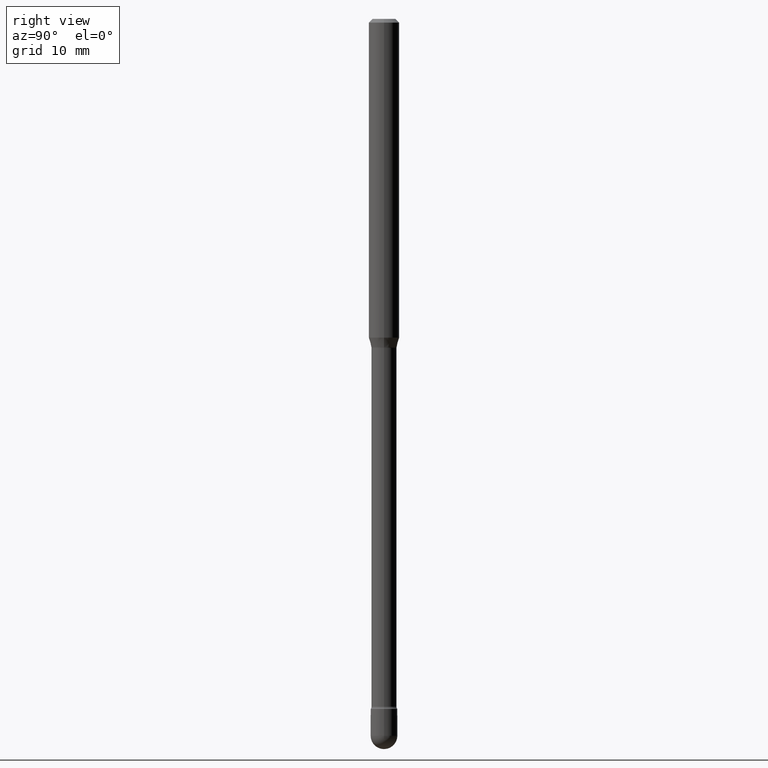
[diagram: clean part render]
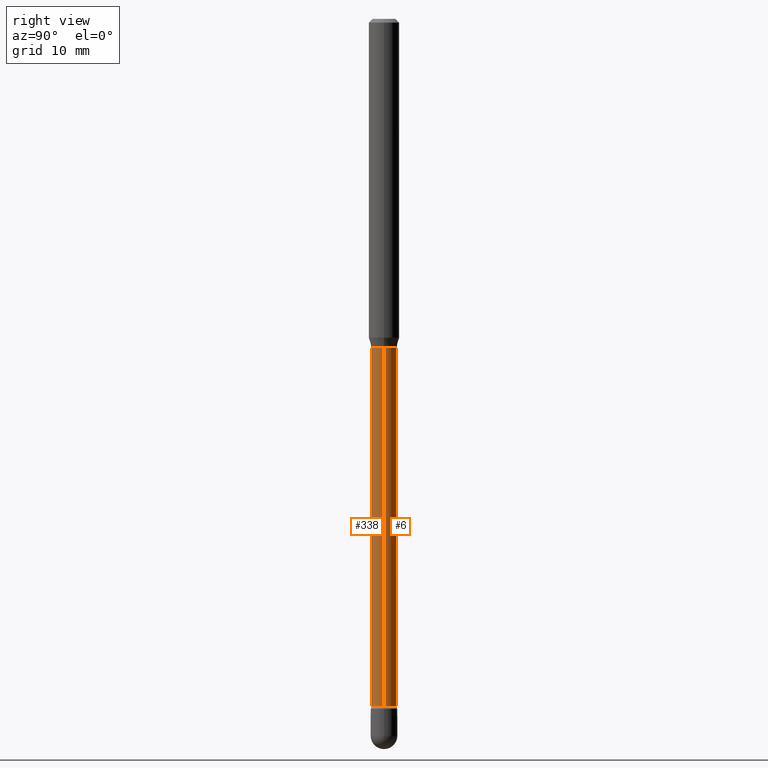
[diagram: same view with one multi-face feature highlighted, each face labeled with its STEP entity id]
A machine part, right view. The highlighted faces form ONE feature: a constant-radius fillet chain: 2 tangent blend faces with common blend radius 1.3132 mm. The faces share edges in the B-rep.
Their STEP definitions:
[1] entity #338 (Cylinder):
#4 = ORIENTED_EDGE ( 'NONE', *, *, #347, .F. ) ;
#16 = EDGE_CURVE ( 'NONE', #36, #512, #562, .T. ) ;
#25 = DIRECTION ( 'NONE',  ( -2.445468806185136597E-29, 3.491481338843145583E-15, 1.000000000000000000 ) ) ;
#29 = DIRECTION ( 'NONE',  ( 1.000000000000000000, -6.982962677686276177E-15, 0.000000000000000000 ) ) ;
#36 = VERTEX_POINT ( 'NONE', #346 ) ;
#39 = ORIENTED_EDGE ( 'NONE', *, *, #16, .F. ) ;
#68 = FACE_OUTER_BOUND ( 'NONE', #292, .T. ) ;
#70 = DIRECTION ( 'NONE',  ( 1.000000000000000000, -6.982962677686261189E-15, 0.000000000000000000 ) ) ;
#87 = LINE ( 'NONE', #340, #243 ) ;
#89 = VERTEX_POINT ( 'NONE', #348 ) ;
#156 = CARTESIAN_POINT ( 'NONE',  ( 3.306212169491528770E-29, -4.720394741016323531E-15, -1.351974787463810834 ) ) ;
#206 = CARTESIAN_POINT ( 'NONE',  ( 6.909949201323477273E-29, -9.865576133195845499E-15, -2.825613307291703347 ) ) ;
#215 = CIRCLE ( 'NONE', #371, 0.05169999999999998902 ) ;
#220 = ORIENTED_EDGE ( 'NONE', *, *, #424, .T. ) ;
#243 = VECTOR ( 'NONE', #252, 39.37007874015748143 ) ;
#247 = ORIENTED_EDGE ( 'NONE', *, *, #352, .T. ) ;
#252 = DIRECTION ( 'NONE',  ( -2.445468806185136877E-29, 3.491481338843145188E-15, 1.000000000000000000 ) ) ;
#286 = DIRECTION ( 'NONE',  ( -2.445468806185136597E-29, 3.491481338843145583E-15, 1.000000000000000000 ) ) ;
#292 = EDGE_LOOP ( 'NONE', ( #39, #247, #220, #4 ) ) ;
#295 = CARTESIAN_POINT ( 'NONE',  ( 0.05170000000000023882, -1.022659530363222664E-14, -2.825613307291703347 ) ) ;
#326 = CYLINDRICAL_SURFACE ( 'NONE', #412, 0.05170000000000010698 ) ;
#338 = ADVANCED_FACE ( 'NONE', ( #68 ), #326, .T. ) ;
#340 = CARTESIAN_POINT ( 'NONE',  ( 0.05170000000000010698, -3.610191704363790668E-16, 4.780733988912485777E-16 ) ) ;
#346 = CARTESIAN_POINT ( 'NONE',  ( -0.05170000000000023882, -9.502888314880069861E-15, -2.825613307291703347 ) ) ;
#347 = EDGE_CURVE ( 'NONE', #512, #89, #215, .T. ) ;
#348 = CARTESIAN_POINT ( 'NONE',  ( 0.05169999999999998902, -5.081413911452703879E-15, -1.351974787463810834 ) ) ;
#352 = EDGE_CURVE ( 'NONE', #36, #549, #354, .T. ) ;
#354 = CIRCLE ( 'NONE', #486, 0.05170000000000023882 ) ;
#371 = AXIS2_PLACEMENT_3D ( 'NONE', #156, #25, #29 ) ;
#412 = AXIS2_PLACEMENT_3D ( 'NONE', #497, #286, #545 ) ;
#424 = EDGE_CURVE ( 'NONE', #549, #89, #87, .T. ) ;
#435 = CARTESIAN_POINT ( 'NONE',  ( -0.05170000000000010698, 3.673505943879742819E-16, 4.780733988912435487E-16 ) ) ;
#467 = CARTESIAN_POINT ( 'NONE',  ( -0.05169999999999998902, -6.925634842718109000E-15, -1.351974787463810834 ) ) ;
#475 = DIRECTION ( 'NONE',  ( -2.445468806185136877E-29, 3.491481338843145188E-15, 1.000000000000000000 ) ) ;
#477 = VECTOR ( 'NONE', #475, 39.37007874015748143 ) ;
#486 = AXIS2_PLACEMENT_3D ( 'NONE', #206, #550, #70 ) ;
#497 = CARTESIAN_POINT ( 'NONE',  ( -1.169113584055446105E-44, 1.669184350826100908E-30, 4.780733988912460139E-16 ) ) ;
#512 = VERTEX_POINT ( 'NONE', #467 ) ;
#545 = DIRECTION ( 'NONE',  ( 1.000000000000000000, -6.982962677686266711E-15, 4.927827573631261358E-29 ) ) ;
#549 = VERTEX_POINT ( 'NONE', #295 ) ;
#550 = DIRECTION ( 'NONE',  ( -2.445468806185136597E-29, 3.491481338843145583E-15, 1.000000000000000000 ) ) ;
#562 = LINE ( 'NONE', #435, #477 ) ;
[2] entity #6 (Cylinder):
#6 = ADVANCED_FACE ( 'NONE', ( #254 ), #86, .T. ) ;
#7 = ORIENTED_EDGE ( 'NONE', *, *, #258, .T. ) ;
#16 = EDGE_CURVE ( 'NONE', #36, #512, #562, .T. ) ;
#21 = ORIENTED_EDGE ( 'NONE', *, *, #16, .T. ) ;
#36 = VERTEX_POINT ( 'NONE', #346 ) ;
#42 = DIRECTION ( 'NONE',  ( -2.445468806185136597E-29, 3.491481338843145583E-15, 1.000000000000000000 ) ) ;
#86 = CYLINDRICAL_SURFACE ( 'NONE', #376, 0.05170000000000010698 ) ;
#87 = LINE ( 'NONE', #340, #243 ) ;
#89 = VERTEX_POINT ( 'NONE', #348 ) ;
#92 = CIRCLE ( 'NONE', #270, 0.05169999999999998902 ) ;
#111 = CARTESIAN_POINT ( 'NONE',  ( 6.909949201323477273E-29, -9.865576133195845499E-15, -2.825613307291703347 ) ) ;
#155 = DIRECTION ( 'NONE',  ( 1.000000000000000000, -6.982962677686276177E-15, 0.000000000000000000 ) ) ;
#218 = DIRECTION ( 'NONE',  ( 1.000000000000000000, -6.982962677686266711E-15, 4.927827573631261358E-29 ) ) ;
#233 = CIRCLE ( 'NONE', #334, 0.05170000000000023882 ) ;
#243 = VECTOR ( 'NONE', #252, 39.37007874015748143 ) ;
#252 = DIRECTION ( 'NONE',  ( -2.445468806185136877E-29, 3.491481338843145188E-15, 1.000000000000000000 ) ) ;
#254 = FACE_OUTER_BOUND ( 'NONE', #271, .T. ) ;
#258 = EDGE_CURVE ( 'NONE', #549, #36, #233, .T. ) ;
#270 = AXIS2_PLACEMENT_3D ( 'NONE', #458, #418, #155 ) ;
#271 = EDGE_LOOP ( 'NONE', ( #7, #21, #381, #546 ) ) ;
#279 = DIRECTION ( 'NONE',  ( -2.445468806185136597E-29, 3.491481338843145583E-15, 1.000000000000000000 ) ) ;
#293 = EDGE_CURVE ( 'NONE', #89, #512, #92, .T. ) ;
#295 = CARTESIAN_POINT ( 'NONE',  ( 0.05170000000000023882, -1.022659530363222664E-14, -2.825613307291703347 ) ) ;
#334 = AXIS2_PLACEMENT_3D ( 'NONE', #111, #279, #447 ) ;
#340 = CARTESIAN_POINT ( 'NONE',  ( 0.05170000000000010698, -3.610191704363790668E-16, 4.780733988912485777E-16 ) ) ;
#346 = CARTESIAN_POINT ( 'NONE',  ( -0.05170000000000023882, -9.502888314880069861E-15, -2.825613307291703347 ) ) ;
#348 = CARTESIAN_POINT ( 'NONE',  ( 0.05169999999999998902, -5.081413911452703879E-15, -1.351974787463810834 ) ) ;
#376 = AXIS2_PLACEMENT_3D ( 'NONE', #426, #42, #218 ) ;
#381 = ORIENTED_EDGE ( 'NONE', *, *, #293, .F. ) ;
#418 = DIRECTION ( 'NONE',  ( -2.445468806185136597E-29, 3.491481338843145583E-15, 1.000000000000000000 ) ) ;
#424 = EDGE_CURVE ( 'NONE', #549, #89, #87, .T. ) ;
#426 = CARTESIAN_POINT ( 'NONE',  ( -1.169113584055446105E-44, 1.669184350826100908E-30, 4.780733988912460139E-16 ) ) ;
#435 = CARTESIAN_POINT ( 'NONE',  ( -0.05170000000000010698, 3.673505943879742819E-16, 4.780733988912435487E-16 ) ) ;
#447 = DIRECTION ( 'NONE',  ( 1.000000000000000000, -6.982962677686261189E-15, 0.000000000000000000 ) ) ;
#458 = CARTESIAN_POINT ( 'NONE',  ( 3.306212169491528770E-29, -4.720394741016323531E-15, -1.351974787463810834 ) ) ;
#467 = CARTESIAN_POINT ( 'NONE',  ( -0.05169999999999998902, -6.925634842718109000E-15, -1.351974787463810834 ) ) ;
#475 = DIRECTION ( 'NONE',  ( -2.445468806185136877E-29, 3.491481338843145188E-15, 1.000000000000000000 ) ) ;
#477 = VECTOR ( 'NONE', #475, 39.37007874015748143 ) ;
#512 = VERTEX_POINT ( 'NONE', #467 ) ;
#546 = ORIENTED_EDGE ( 'NONE', *, *, #424, .F. ) ;
#549 = VERTEX_POINT ( 'NONE', #295 ) ;
#562 = LINE ( 'NONE', #435, #477 ) ;